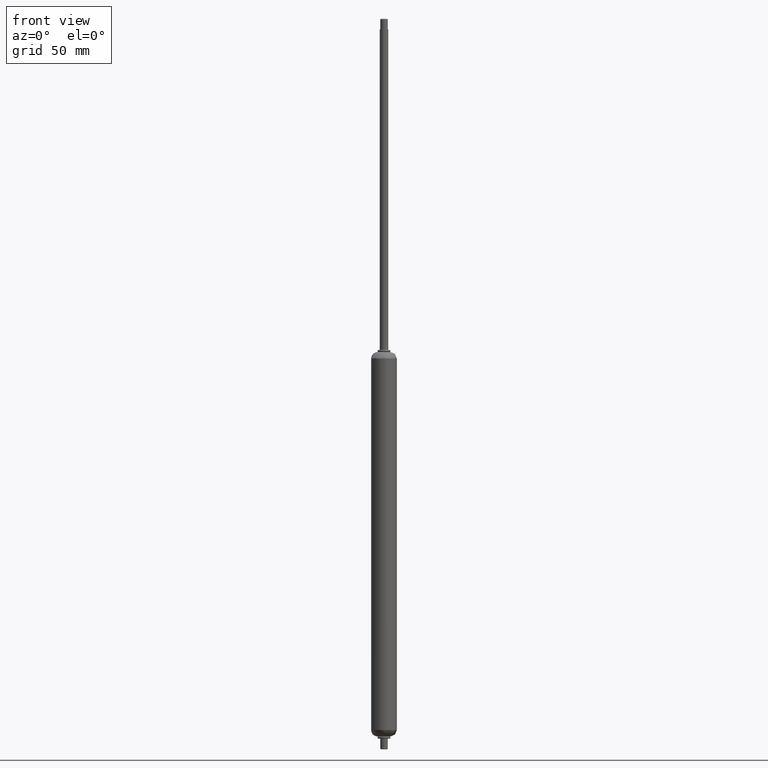
[diagram: clean part render]
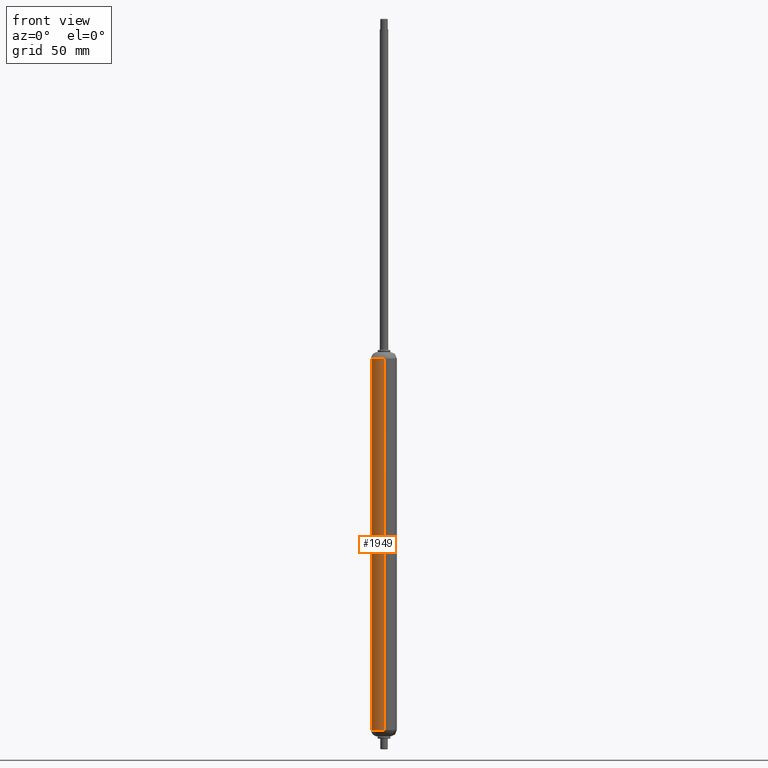
[diagram: same view with one face highlighted and labeled with its STEP entity id]
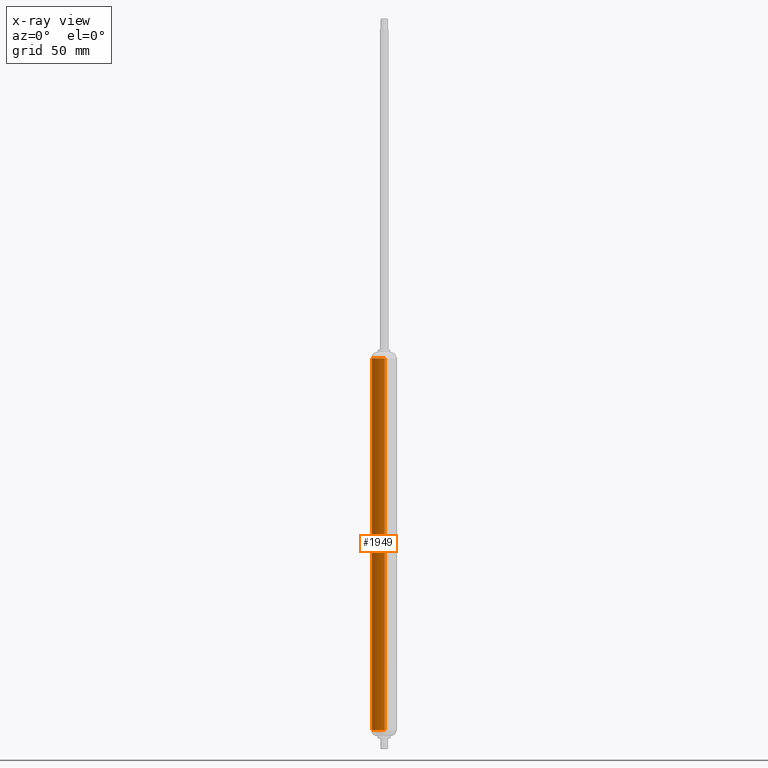
[diagram: x-ray of the same camera — body ghosted, the highlighted face saturated]
A machine part, front view. The second image highlights one B-rep face of the part: STEP entity #1949.
The next image is the same camera in x-ray: the body ghosted, the highlighted face saturated — about 0% of this face is hidden behind the body in this view.
In plain terms, the highlighted face is a freeform B-spline surface patch.
Its self-contained STEP definition (entity closure, byte-faithful):
#1760=CARTESIAN_POINT('',(-5.616861472636417,-2.109707846409630,-2.999999999999994));
#1761=VERTEX_POINT('',#1760);
#1809=CARTESIAN_POINT('',(0.366291238628772,-5.988808790443720,-2.999999999999994));
#1810=VERTEX_POINT('',#1809);
#1824=CARTESIAN_POINT('',(0.366291238628771,-5.988808790443728,-177.000003081855200));
#1825=VERTEX_POINT('',#1824);
#1826=CARTESIAN_POINT('',(0.366291238628772,-5.988808790443720,-2.999999999999994));
#1827=CARTESIAN_POINT('',(0.366291238628771,-5.988808790443728,-177.000003081855200));
#1828=QUASI_UNIFORM_CURVE('',1,(#1826,#1827),.UNSPECIFIED.,.F.,.U.);
#1829=EDGE_CURVE('',#1810,#1825,#1828,.T.);
#1878=CARTESIAN_POINT('',(-5.616861472635868,-2.109707846409423,-177.000002106760290));
#1879=VERTEX_POINT('',#1878);
#1893=CARTESIAN_POINT('',(-5.616861472636417,-2.109707846409630,-2.999999999999994));
#1894=CARTESIAN_POINT('',(-5.616861472635868,-2.109707846409423,-177.000002106760290));
#1895=QUASI_UNIFORM_CURVE('',1,(#1893,#1894),.UNSPECIFIED.,.F.,.U.);
#1896=EDGE_CURVE('',#1761,#1879,#1895,.T.);
#1901=CARTESIAN_POINT('',(0.366291237209304,-5.988808790530532,1.350000100000072));
#1902=CARTESIAN_POINT('',(-4.058217490817736,-6.259423337215350,1.350000100000072));
#1903=CARTESIAN_POINT('',(-5.616861472659112,-2.109707846349194,1.350000100000072));
#1904=CARTESIAN_POINT('',(0.366291237209304,-5.988808790530532,-181.458754102502810));
#1905=CARTESIAN_POINT('',(-4.058217490817736,-6.259423337215350,-181.458754102502720));
#1906=CARTESIAN_POINT('',(-5.616861472659112,-2.109707846349194,-181.458754102502750));
#1914=(BOUNDED_SURFACE()B_SPLINE_SURFACE(2,1,((#1901,#1904),(#1902,#1905),(#1903,#1906)),.UNSPECIFIED.,.F.,.F.,.U.)B_SPLINE_SURFACE_WITH_KNOTS((3,3),(2,2),(0.0,7.898692343318997),(0.0,182.808754202502910),.UNSPECIFIED.)GEOMETRIC_REPRESENTATION_ITEM()RATIONAL_B_SPLINE_SURFACE(((1.0,1.0),(0.765685424949238,0.765685424949238),(0.906274169979695,0.906274169979695)))REPRESENTATION_ITEM('')SURFACE());
#1915=CARTESIAN_POINT('',(0.366291238628772,-5.988808790443720,-2.999999999999994));
#1916=CARTESIAN_POINT('',(0.183316581215165,-5.999999999999340,-3.000000000000001));
#1917=CARTESIAN_POINT('',(2.060574E-013,-5.999999999999340,-3.0));
#1918=CARTESIAN_POINT('',(-4.155657574070324,-5.999999999999339,-3.0));
#1919=CARTESIAN_POINT('',(-5.616861472636418,-2.109707846409630,-2.999999999999994));
#1927=(BOUNDED_CURVE()B_SPLINE_CURVE(2,(#1915,#1916,#1917,#1918,#1919),.UNSPECIFIED.,.F.,.U.)B_SPLINE_CURVE_WITH_KNOTS((3,2,3),(0.739332962160174,0.750000000000000,0.940284170895510),.UNSPECIFIED.)CURVE()GEOMETRIC_REPRESENTATION_ITEM()RATIONAL_B_SPLINE_CURVE((0.976072041497902,0.987502787807554,1.0,0.777068226788660,0.893499554631606))REPRESENTATION_ITEM(''));
#1928=EDGE_CURVE('',#1810,#1761,#1927,.T.);
#1929=ORIENTED_EDGE('',*,*,#1928,.T.);
#1930=ORIENTED_EDGE('',*,*,#1896,.T.);
#1931=CARTESIAN_POINT('',(0.366291238628771,-5.988808790443728,-177.000003081855200));
#1932=CARTESIAN_POINT('',(0.183316581215482,-5.999999999999321,-177.000003052035170));
#1933=CARTESIAN_POINT('',(8.419931E-013,-5.999999999999321,-177.000003022159400));
#1934=CARTESIAN_POINT('',(-4.155657574069593,-5.999999999999321,-177.000002344897690));
#1935=CARTESIAN_POINT('',(-5.616861472635868,-2.109707846409423,-177.000002106760290));
#1943=(BOUNDED_CURVE()B_SPLINE_CURVE(2,(#1931,#1932,#1933,#1934,#1935),.UNSPECIFIED.,.F.,.U.)B_SPLINE_CURVE_WITH_KNOTS((3,2,3),(0.739332962160192,0.750000000000000,0.940284170895523),.UNSPECIFIED.)CURVE()GEOMETRIC_REPRESENTATION_ITEM()RATIONAL_B_SPLINE_CURVE((0.976072041497938,0.987502787807574,1.0,0.777068226788645,0.893499554631622))REPRESENTATION_ITEM(''));
#1944=EDGE_CURVE('',#1825,#1879,#1943,.T.);
#1945=ORIENTED_EDGE('',*,*,#1944,.F.);
#1946=ORIENTED_EDGE('',*,*,#1829,.F.);
#1947=EDGE_LOOP('',(#1929,#1930,#1945,#1946));
#1948=FACE_OUTER_BOUND('',#1947,.T.);
#1949=ADVANCED_FACE('',(#1948),#1914,.T.);